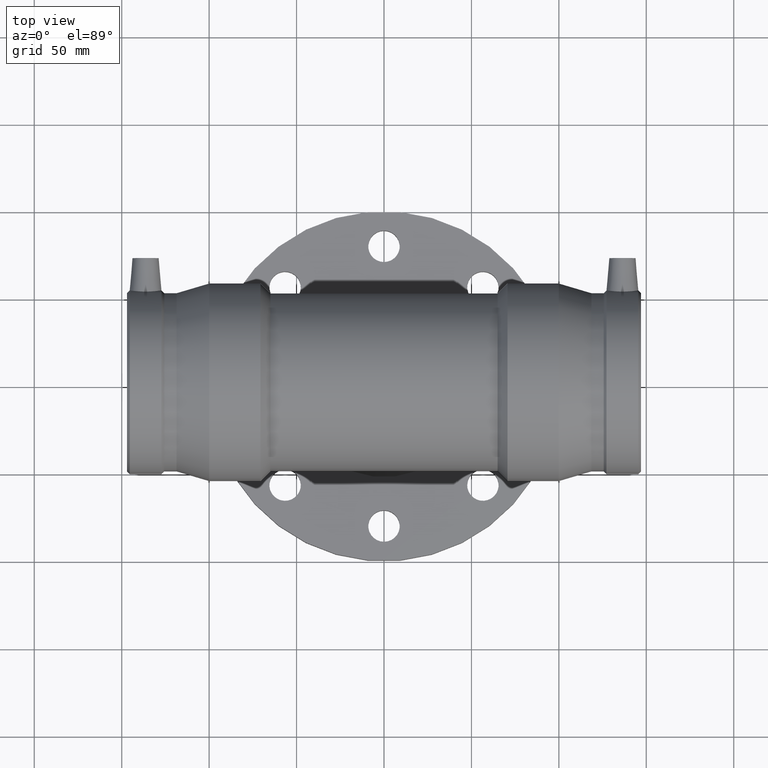
[diagram: clean part render]
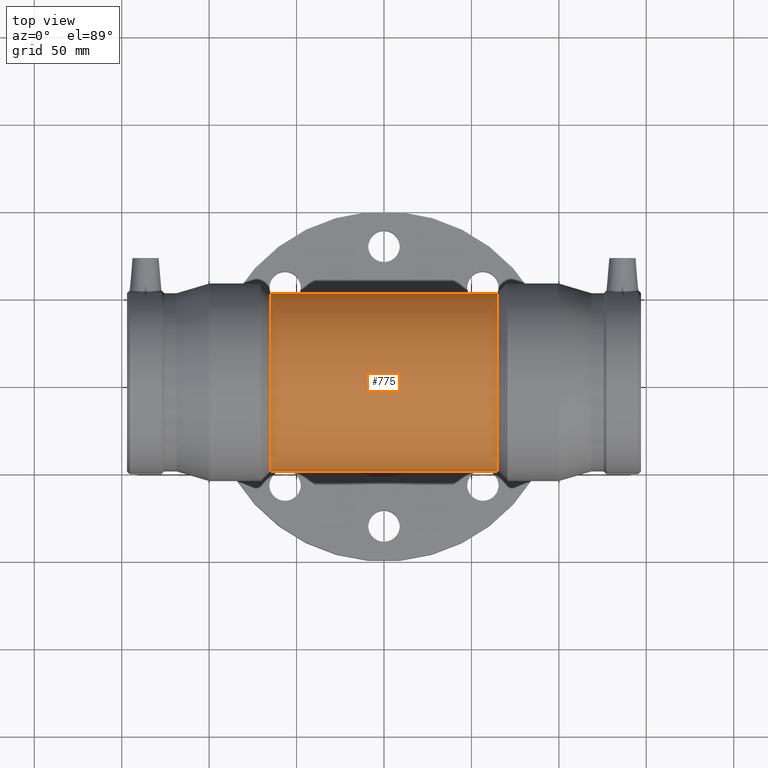
[diagram: same view with one face highlighted and labeled with its STEP entity id]
A machine part, top view. The second image highlights one B-rep face of the part: STEP entity #775.
In plain terms, the highlighted cylindrical surface (bore or boss wall) has radius 50.85 mm, axis along (1, 0, 0).
Its self-contained STEP definition (entity closure, byte-faithful):
#79=FACE_BOUND('',#339,.T.);
#80=FACE_BOUND('',#340,.T.);
#143=CIRCLE('',#867,50.85);
#144=CIRCLE('',#868,50.85);
#199=CYLINDRICAL_SURFACE('',#866,50.85);
#239=FACE_OUTER_BOUND('',#338,.T.);
#338=EDGE_LOOP('',(#648));
#339=EDGE_LOOP('',(#649));
#340=EDGE_LOOP('',(#650));
#424=B_SPLINE_CURVE_WITH_KNOTS('',3,(#1553,#1554,#1555,#1556,#1557,#1558,
#1559,#1560,#1561,#1562,#1563,#1564,#1565,#1566,#1567,#1568,#1569,#1570,
#1571,#1572,#1573,#1574,#1575,#1576,#1577,#1578,#1579,#1580,#1581,#1582,
#1583,#1584,#1585,#1586,#1587,#1588,#1589,#1590,#1591,#1592,#1593,#1594,
#1595,#1596,#1597,#1598,#1599,#1600,#1601,#1602,#1603,#1604,#1605,#1606,
#1607,#1608,#1609,#1610,#1611,#1612,#1613,#1614,#1615,#1616,#1617,#1618,
#1619,#1620,#1621,#1622,#1623,#1624,#1625,#1626,#1627,#1628,#1629,#1630,
#1631,#1632,#1633,#1634,#1635,#1636,#1637,#1638,#1639,#1640,#1641,#1642),
 .UNSPECIFIED.,.T.,.F.,(4,2,2,2,2,2,2,2,2,2,2,2,2,2,2,2,2,2,2,2,2,2,2,2,
2,2,2,2,2,2,2,2,2,2,2,2,2,2,2,2,2,2,2,2,4),(0.,0.316944244375093,0.633888488750187,
1.26777697750037,1.90166546625056,2.53555395500075,3.80333093250112,5.0711079100015,
6.10140979702409,7.13171168404669,8.16201357106928,9.19231545809188,10.2226173451145,
11.2529192321371,12.2832211191597,13.3135230061823,14.5812999836826,15.849076961183,
16.4829654499332,17.1168539386834,17.7507424274336,18.0676866718087,18.3846309161838,
18.7015751605588,19.0185194049339,19.6524078936841,20.2862963824343,20.9201848711845,
22.1879618486849,23.4557388261852,24.4860407132078,25.5163426002304,26.546644487253,
27.5769463742756,28.6072482612982,29.6375501483208,30.6678520353434,31.698153922366,
32.9659308998664,34.2337078773668,34.867596366117,35.5014848548671,36.1353733436173,
36.4523175879924,36.7692618323675),.UNSPECIFIED.);
#455=VERTEX_POINT('',#1552);
#464=VERTEX_POINT('',#1669);
#465=VERTEX_POINT('',#1671);
#529=EDGE_CURVE('',#455,#455,#424,.T.);
#538=EDGE_CURVE('',#464,#464,#143,.T.);
#539=EDGE_CURVE('',#465,#465,#144,.T.);
#648=ORIENTED_EDGE('',*,*,#538,.F.);
#649=ORIENTED_EDGE('',*,*,#539,.T.);
#650=ORIENTED_EDGE('',*,*,#529,.T.);
#775=ADVANCED_FACE('',(#239,#79,#80),#199,.T.);
#866=AXIS2_PLACEMENT_3D('',#1668,#1045,#1046);
#867=AXIS2_PLACEMENT_3D('',#1670,#1047,#1048);
#868=AXIS2_PLACEMENT_3D('',#1672,#1049,#1050);
#1045=DIRECTION('center_axis',(1.,0.,0.));
#1046=DIRECTION('ref_axis',(0.,1.,0.));
#1047=DIRECTION('center_axis',(1.,0.,0.));
#1048=DIRECTION('ref_axis',(0.,0.,-1.));
#1049=DIRECTION('center_axis',(1.,0.,0.));
#1050=DIRECTION('ref_axis',(0.,0.,-1.));
#1552=CARTESIAN_POINT('',(-1.38777878078145E-15,50.,-9.25864460922878));
#1553=CARTESIAN_POINT('Ctrl Pts',(-1.38777878078145E-15,50.,-9.25864460922878));
#1554=CARTESIAN_POINT('Ctrl Pts',(-1.05648081458365,50.,-9.25864460922878));
#1555=CARTESIAN_POINT('Ctrl Pts',(-2.00116569301912,49.9677700347801,-9.43483337370864));
#1556=CARTESIAN_POINT('Ctrl Pts',(-3.76763718887515,49.8656958637345,-9.96024555601825));
#1557=CARTESIAN_POINT('Ctrl Pts',(-4.58902674366152,49.7953689228733,-10.3107092245318));
#1558=CARTESIAN_POINT('Ctrl Pts',(-6.97169007576989,49.537347312851,-11.5082674774062));
#1559=CARTESIAN_POINT('Ctrl Pts',(-8.44588984096493,49.3045015076406,-12.491673278144));
#1560=CARTESIAN_POINT('Ctrl Pts',(-11.3972717405626,48.7069719964823,-14.6494590038854));
#1561=CARTESIAN_POINT('Ctrl Pts',(-12.8525759323175,48.3438478283597,-15.8203582544374));
#1562=CARTESIAN_POINT('Ctrl Pts',(-15.7691334738113,47.4726317076319,-18.2691159176424));
#1563=CARTESIAN_POINT('Ctrl Pts',(-17.229136852743,46.9644691652279,-19.548437597048));
#1564=CARTESIAN_POINT('Ctrl Pts',(-21.6324136030038,45.1891223132336,-23.4943997788488));
#1565=CARTESIAN_POINT('Ctrl Pts',(-24.5618710609286,43.6809898554116,-26.2334684302491));
#1566=CARTESIAN_POINT('Ctrl Pts',(-30.1912369781057,39.9975447879833,-31.5661236092642));
#1567=CARTESIAN_POINT('Ctrl Pts',(-32.8889779545296,37.8217001641252,-34.1616303325981));
#1568=CARTESIAN_POINT('Ctrl Pts',(-37.3597109208219,33.3509671978329,-38.4865258117545));
#1569=CARTESIAN_POINT('Ctrl Pts',(-39.3232102316643,31.0411743994854,-40.3965720549257));
#1570=CARTESIAN_POINT('Ctrl Pts',(-42.8993193415381,25.8750414847761,-43.8853024461563));
#1571=CARTESIAN_POINT('Ctrl Pts',(-44.5116305460863,23.0182287981414,-45.4635928488943));
#1572=CARTESIAN_POINT('Ctrl Pts',(-47.1745615086163,16.9022194271578,-48.0738211280372));
#1573=CARTESIAN_POINT('Ctrl Pts',(-48.2277635210254,13.6351771427714,-49.1082724481459));
#1574=CARTESIAN_POINT('Ctrl Pts',(-49.640774450509,6.90135799133343,-50.4966507468733));
#1575=CARTESIAN_POINT('Ctrl Pts',(-50.,3.43433962340865,-50.85));
#1576=CARTESIAN_POINT('Ctrl Pts',(-50.,-3.43433962340865,-50.85));
#1577=CARTESIAN_POINT('Ctrl Pts',(-49.640774450509,-6.90135799133343,-50.4966507468733));
#1578=CARTESIAN_POINT('Ctrl Pts',(-48.2277635210254,-13.6351771427714,-49.1082724481459));
#1579=CARTESIAN_POINT('Ctrl Pts',(-47.1745615086163,-16.9022194271578,-48.0738211280372));
#1580=CARTESIAN_POINT('Ctrl Pts',(-44.5116305460863,-23.0182287981414,-45.4635928488943));
#1581=CARTESIAN_POINT('Ctrl Pts',(-42.8993193415381,-25.8750414847761,-43.8853024461564));
#1582=CARTESIAN_POINT('Ctrl Pts',(-39.3232102316643,-31.0411743994854,-40.3965720549257));
#1583=CARTESIAN_POINT('Ctrl Pts',(-37.3597109208219,-33.3509671978329,-38.4865258117545));
#1584=CARTESIAN_POINT('Ctrl Pts',(-32.8889779545296,-37.8217001641252,-34.1616303325981));
#1585=CARTESIAN_POINT('Ctrl Pts',(-30.1912369781057,-39.9975447879833,-31.5661236092642));
#1586=CARTESIAN_POINT('Ctrl Pts',(-24.5618710609286,-43.6809898554116,-26.2334684302491));
#1587=CARTESIAN_POINT('Ctrl Pts',(-21.6324136030038,-45.1891223132336,-23.4943997788488));
#1588=CARTESIAN_POINT('Ctrl Pts',(-17.229136852743,-46.9644691652279,-19.548437597048));
#1589=CARTESIAN_POINT('Ctrl Pts',(-15.7691334738114,-47.4726317076319,-18.2691159176424));
#1590=CARTESIAN_POINT('Ctrl Pts',(-12.8525759323176,-48.3438478283597,-15.8203582544374));
#1591=CARTESIAN_POINT('Ctrl Pts',(-11.3972717405626,-48.7069719964823,-14.6494590038854));
#1592=CARTESIAN_POINT('Ctrl Pts',(-8.44588984096495,-49.3045015076406,-12.4916732781439));
#1593=CARTESIAN_POINT('Ctrl Pts',(-6.9716900757699,-49.537347312851,-11.5082674774062));
#1594=CARTESIAN_POINT('Ctrl Pts',(-4.58902674366153,-49.7953689228733,-10.3107092245318));
#1595=CARTESIAN_POINT('Ctrl Pts',(-3.76763718887515,-49.8656958637345,-9.96024555601825));
#1596=CARTESIAN_POINT('Ctrl Pts',(-2.00116569301912,-49.9677700347801,-9.43483337370863));
#1597=CARTESIAN_POINT('Ctrl Pts',(-1.05648081458365,-50.,-9.25864460922877));
#1598=CARTESIAN_POINT('Ctrl Pts',(1.05648081458364,-50.,-9.25864460922877));
#1599=CARTESIAN_POINT('Ctrl Pts',(2.00116569301912,-49.9677700347801,-9.43483337370864));
#1600=CARTESIAN_POINT('Ctrl Pts',(3.76763718887515,-49.8656958637345,-9.96024555601825));
#1601=CARTESIAN_POINT('Ctrl Pts',(4.58902674366152,-49.7953689228733,-10.3107092245318));
#1602=CARTESIAN_POINT('Ctrl Pts',(6.97169007576989,-49.537347312851,-11.5082674774062));
#1603=CARTESIAN_POINT('Ctrl Pts',(8.44588984096493,-49.3045015076406,-12.491673278144));
#1604=CARTESIAN_POINT('Ctrl Pts',(11.3972717405626,-48.7069719964823,-14.6494590038854));
#1605=CARTESIAN_POINT('Ctrl Pts',(12.8525759323176,-48.3438478283597,-15.8203582544374));
#1606=CARTESIAN_POINT('Ctrl Pts',(15.7691334738113,-47.4726317076319,-18.2691159176424));
#1607=CARTESIAN_POINT('Ctrl Pts',(17.229136852743,-46.9644691652279,-19.548437597048));
#1608=CARTESIAN_POINT('Ctrl Pts',(21.6324136030038,-45.1891223132336,-23.4943997788488));
#1609=CARTESIAN_POINT('Ctrl Pts',(24.5618710609286,-43.6809898554116,-26.2334684302491));
#1610=CARTESIAN_POINT('Ctrl Pts',(30.1912369781057,-39.9975447879833,-31.5661236092642));
#1611=CARTESIAN_POINT('Ctrl Pts',(32.8889779545296,-37.8217001641252,-34.1616303325981));
#1612=CARTESIAN_POINT('Ctrl Pts',(37.3597109208219,-33.3509671978329,-38.4865258117544));
#1613=CARTESIAN_POINT('Ctrl Pts',(39.3232102316643,-31.0411743994854,-40.3965720549257));
#1614=CARTESIAN_POINT('Ctrl Pts',(42.899319341538,-25.8750414847761,-43.8853024461564));
#1615=CARTESIAN_POINT('Ctrl Pts',(44.5116305460863,-23.0182287981414,-45.4635928488942));
#1616=CARTESIAN_POINT('Ctrl Pts',(47.1745615086163,-16.9022194271578,-48.0738211280372));
#1617=CARTESIAN_POINT('Ctrl Pts',(48.2277635210254,-13.6351771427714,-49.1082724481459));
#1618=CARTESIAN_POINT('Ctrl Pts',(49.640774450509,-6.90135799133344,-50.4966507468733));
#1619=CARTESIAN_POINT('Ctrl Pts',(50.,-3.43433962340867,-50.85));
#1620=CARTESIAN_POINT('Ctrl Pts',(50.,3.43433962340866,-50.85));
#1621=CARTESIAN_POINT('Ctrl Pts',(49.640774450509,6.90135799133343,-50.4966507468733));
#1622=CARTESIAN_POINT('Ctrl Pts',(48.2277635210254,13.6351771427714,-49.1082724481459));
#1623=CARTESIAN_POINT('Ctrl Pts',(47.1745615086163,16.9022194271578,-48.0738211280372));
#1624=CARTESIAN_POINT('Ctrl Pts',(44.5116305460863,23.0182287981414,-45.4635928488943));
#1625=CARTESIAN_POINT('Ctrl Pts',(42.8993193415381,25.8750414847761,-43.8853024461563));
#1626=CARTESIAN_POINT('Ctrl Pts',(39.3232102316643,31.0411743994854,-40.3965720549257));
#1627=CARTESIAN_POINT('Ctrl Pts',(37.3597109208219,33.3509671978329,-38.4865258117545));
#1628=CARTESIAN_POINT('Ctrl Pts',(32.8889779545296,37.8217001641252,-34.1616303325981));
#1629=CARTESIAN_POINT('Ctrl Pts',(30.1912369781057,39.9975447879833,-31.5661236092642));
#1630=CARTESIAN_POINT('Ctrl Pts',(24.5618710609286,43.6809898554116,-26.2334684302491));
#1631=CARTESIAN_POINT('Ctrl Pts',(21.6324136030038,45.1891223132336,-23.4943997788488));
#1632=CARTESIAN_POINT('Ctrl Pts',(17.229136852743,46.9644691652279,-19.548437597048));
#1633=CARTESIAN_POINT('Ctrl Pts',(15.7691334738113,47.4726317076319,-18.2691159176423));
#1634=CARTESIAN_POINT('Ctrl Pts',(12.8525759323175,48.3438478283597,-15.8203582544373));
#1635=CARTESIAN_POINT('Ctrl Pts',(11.3972717405626,48.7069719964823,-14.6494590038854));
#1636=CARTESIAN_POINT('Ctrl Pts',(8.44588984096489,49.3045015076406,-12.4916732781439));
#1637=CARTESIAN_POINT('Ctrl Pts',(6.97169007576985,49.537347312851,-11.5082674774062));
#1638=CARTESIAN_POINT('Ctrl Pts',(4.58902674366147,49.7953689228733,-10.3107092245317));
#1639=CARTESIAN_POINT('Ctrl Pts',(3.76763718887509,49.8656958637345,-9.96024555601823));
#1640=CARTESIAN_POINT('Ctrl Pts',(2.00116569301908,49.9677700347801,-9.43483337370863));
#1641=CARTESIAN_POINT('Ctrl Pts',(1.05648081458363,50.,-9.25864460922878));
#1642=CARTESIAN_POINT('Ctrl Pts',(5.41233724504764E-15,50.,-9.25864460922878));
#1668=CARTESIAN_POINT('Origin',(0.,0.,0.));
#1669=CARTESIAN_POINT('',(64.974,50.85,0.));
#1670=CARTESIAN_POINT('Origin',(64.974,0.,0.));
#1671=CARTESIAN_POINT('',(-64.974,50.85,0.));
#1672=CARTESIAN_POINT('Origin',(-64.974,0.,0.));